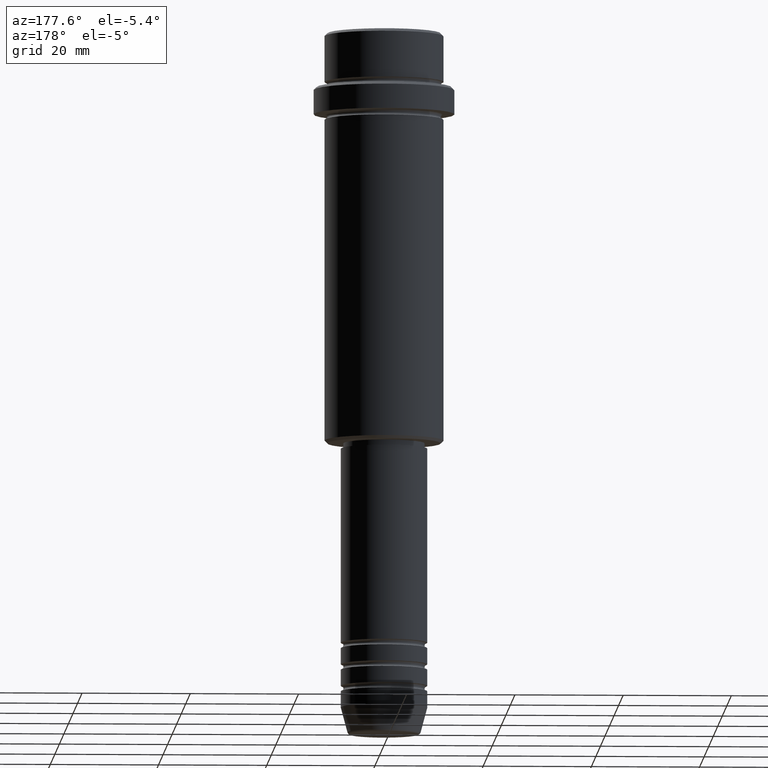
[diagram: clean part render]
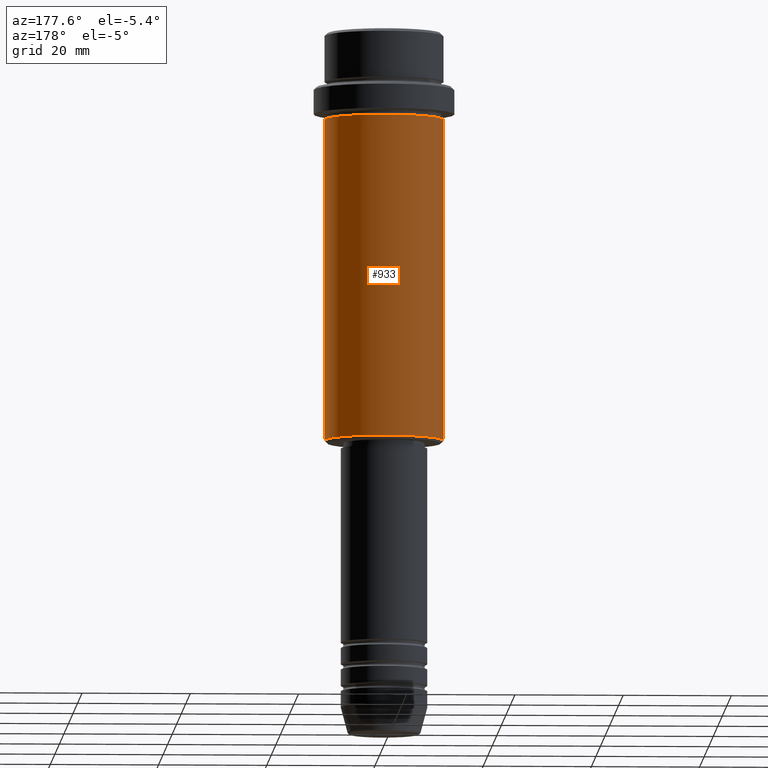
[diagram: same view with one face highlighted and labeled with its STEP entity id]
A machine part, auxiliary view. The second image highlights one B-rep face of the part: STEP entity #933.
In plain terms, the highlighted cylindrical surface (partial cylindrical patch) has radius 11 mm, axis along (-0, -0, 1).
Its self-contained STEP definition (entity closure, byte-faithful):
#132 = LINE ( 'NONE', #536, #883 ) ;
#194 = DIRECTION ( 'NONE',  ( 1.000000000000000000, 0.000000000000000000, 0.000000000000000000 ) ) ;
#234 = DIRECTION ( 'NONE',  ( -0.000000000000000000, -0.000000000000000000, 1.000000000000000000 ) ) ;
#249 = VECTOR ( 'NONE', #1041, 1000.000000000000000 ) ;
#257 = EDGE_CURVE ( 'NONE', #299, #741, #132, .T. ) ;
#288 = CARTESIAN_POINT ( 'NONE',  ( -10.99999999999997158, 1.347111479062085841E-15, -16.00000000000000355 ) ) ;
#299 = VERTEX_POINT ( 'NONE', #1315 ) ;
#300 = CARTESIAN_POINT ( 'NONE',  ( 0.000000000000000000, 0.000000000000000000, 0.000000000000000000 ) ) ;
#323 = EDGE_CURVE ( 'NONE', #942, #299, #421, .T. ) ;
#399 = AXIS2_PLACEMENT_3D ( 'NONE', #870, #234, #1299 ) ;
#421 = CIRCLE ( 'NONE', #399, 10.99999999999998757 ) ;
#427 = AXIS2_PLACEMENT_3D ( 'NONE', #621, #1178, #194 ) ;
#436 = EDGE_LOOP ( 'NONE', ( #849, #1136, #1103, #842 ) ) ;
#465 = EDGE_CURVE ( 'NONE', #942, #1395, #1135, .T. ) ;
#536 = CARTESIAN_POINT ( 'NONE',  ( -10.99999999999998757, 1.347111479062086827E-15, 0.000000000000000000 ) ) ;
#548 = DIRECTION ( 'NONE',  ( -0.000000000000000000, -0.000000000000000000, 1.000000000000000000 ) ) ;
#621 = CARTESIAN_POINT ( 'NONE',  ( 0.000000000000000000, 0.000000000000000000, -16.00000000000000355 ) ) ;
#741 = VERTEX_POINT ( 'NONE', #288 ) ;
#842 = ORIENTED_EDGE ( 'NONE', *, *, #465, .F. ) ;
#849 = ORIENTED_EDGE ( 'NONE', *, *, #323, .T. ) ;
#870 = CARTESIAN_POINT ( 'NONE',  ( 0.000000000000000000, 0.000000000000000000, -75.50000000000001421 ) ) ;
#883 = VECTOR ( 'NONE', #548, 1000.000000000000000 ) ;
#932 = CIRCLE ( 'NONE', #427, 10.99999999999997158 ) ;
#933 = ADVANCED_FACE ( 'NONE', ( #1100 ), #1289, .T. ) ;
#942 = VERTEX_POINT ( 'NONE', #970 ) ;
#970 = CARTESIAN_POINT ( 'NONE',  ( 10.99999999999998757, 0.000000000000000000, -75.50000000000001421 ) ) ;
#1041 = DIRECTION ( 'NONE',  ( -0.000000000000000000, -0.000000000000000000, 1.000000000000000000 ) ) ;
#1100 = FACE_OUTER_BOUND ( 'NONE', #436, .T. ) ;
#1103 = ORIENTED_EDGE ( 'NONE', *, *, #1274, .F. ) ;
#1135 = LINE ( 'NONE', #1243, #249 ) ;
#1136 = ORIENTED_EDGE ( 'NONE', *, *, #257, .T. ) ;
#1178 = DIRECTION ( 'NONE',  ( -0.000000000000000000, -0.000000000000000000, 1.000000000000000000 ) ) ;
#1204 = DIRECTION ( 'NONE',  ( 1.000000000000000000, 0.000000000000000000, 0.000000000000000000 ) ) ;
#1243 = CARTESIAN_POINT ( 'NONE',  ( 10.99999999999998757, 0.000000000000000000, 0.000000000000000000 ) ) ;
#1261 = AXIS2_PLACEMENT_3D ( 'NONE', #300, #1302, #1204 ) ;
#1274 = EDGE_CURVE ( 'NONE', #1395, #741, #932, .T. ) ;
#1289 = CYLINDRICAL_SURFACE ( 'NONE', #1261, 10.99999999999998757 ) ;
#1299 = DIRECTION ( 'NONE',  ( -1.000000000000000000, 0.000000000000000000, 0.000000000000000000 ) ) ;
#1302 = DIRECTION ( 'NONE',  ( -0.000000000000000000, -0.000000000000000000, 1.000000000000000000 ) ) ;
#1315 = CARTESIAN_POINT ( 'NONE',  ( -10.99999999999998757, 1.347111479062086827E-15, -75.50000000000001421 ) ) ;
#1395 = VERTEX_POINT ( 'NONE', #1415 ) ;
#1415 = CARTESIAN_POINT ( 'NONE',  ( 10.99999999999997158, 0.000000000000000000, -16.00000000000000355 ) ) ;